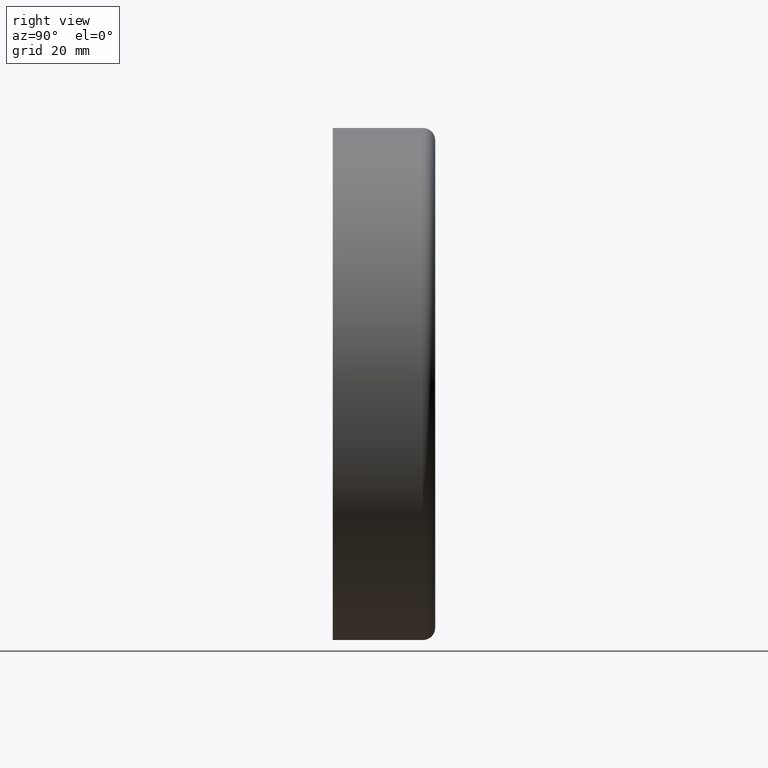
[diagram: clean part render]
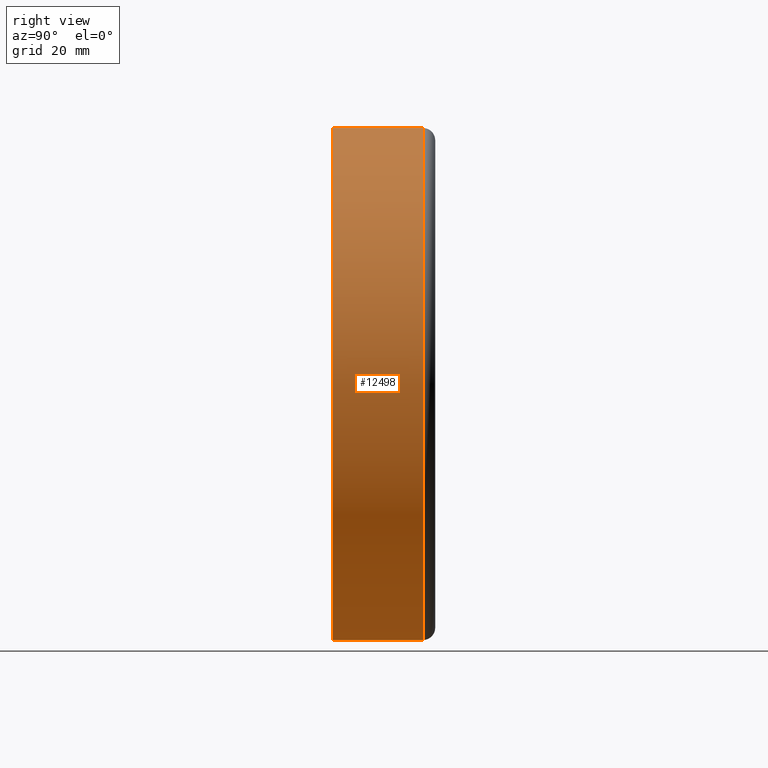
[diagram: same view with one face highlighted and labeled with its STEP entity id]
A machine part, right view. The second image highlights one B-rep face of the part: STEP entity #12498.
In plain terms, the highlighted cylindrical surface (partial cylindrical patch) has radius 62.5 mm, axis along (-0, -1, -0).
Its self-contained STEP definition (entity closure, byte-faithful):
#1 = CIRCLE ( 'NONE', #7782, 62.50000000000000000 ) ;
#303 = CYLINDRICAL_SURFACE ( 'NONE', #8350, 62.50000000000000000 ) ;
#1188 = VECTOR ( 'NONE', #11476, 1000.000000000000000 ) ;
#1362 = CARTESIAN_POINT ( 'NONE',  ( 0.000000000000000000, 22.00000000000000355, -62.50000000000000000 ) ) ;
#2030 = DIRECTION ( 'NONE',  ( -0.000000000000000000, -1.000000000000000000, -0.000000000000000000 ) ) ;
#2252 = CARTESIAN_POINT ( 'NONE',  ( 7.654042494670957804E-15, 0.000000000000000000, 62.50000000000000000 ) ) ;
#2638 = CARTESIAN_POINT ( 'NONE',  ( 0.000000000000000000, 0.000000000000000000, 0.000000000000000000 ) ) ;
#2713 = VERTEX_POINT ( 'NONE', #8235 ) ;
#4097 = EDGE_CURVE ( 'NONE', #10280, #2713, #15532, .T. ) ;
#4296 = DIRECTION ( 'NONE',  ( 0.000000000000000000, 0.000000000000000000, -1.000000000000000000 ) ) ;
#4437 = EDGE_LOOP ( 'NONE', ( #9067, #11041, #14861, #5311 ) ) ;
#4969 = DIRECTION ( 'NONE',  ( 0.000000000000000000, 0.000000000000000000, -1.000000000000000000 ) ) ;
#5276 = EDGE_CURVE ( 'NONE', #2713, #10482, #1, .T. ) ;
#5311 = ORIENTED_EDGE ( 'NONE', *, *, #4097, .F. ) ;
#6398 = EDGE_CURVE ( 'NONE', #10280, #9470, #10481, .T. ) ;
#7130 = DIRECTION ( 'NONE',  ( -0.000000000000000000, -1.000000000000000000, -0.000000000000000000 ) ) ;
#7428 = DIRECTION ( 'NONE',  ( 0.000000000000000000, 0.000000000000000000, -1.000000000000000000 ) ) ;
#7646 = EDGE_CURVE ( 'NONE', #9470, #10482, #13142, .T. ) ;
#7782 = AXIS2_PLACEMENT_3D ( 'NONE', #11758, #2030, #4296 ) ;
#8235 = CARTESIAN_POINT ( 'NONE',  ( 0.000000000000000000, 0.000000000000000000, -62.50000000000000000 ) ) ;
#8350 = AXIS2_PLACEMENT_3D ( 'NONE', #2638, #11289, #7428 ) ;
#8414 = AXIS2_PLACEMENT_3D ( 'NONE', #14923, #13493, #4969 ) ;
#9067 = ORIENTED_EDGE ( 'NONE', *, *, #6398, .T. ) ;
#9213 = FACE_OUTER_BOUND ( 'NONE', #4437, .T. ) ;
#9470 = VERTEX_POINT ( 'NONE', #15351 ) ;
#10280 = VERTEX_POINT ( 'NONE', #1362 ) ;
#10481 = CIRCLE ( 'NONE', #8414, 62.50000000000000000 ) ;
#10482 = VERTEX_POINT ( 'NONE', #11518 ) ;
#11041 = ORIENTED_EDGE ( 'NONE', *, *, #7646, .T. ) ;
#11289 = DIRECTION ( 'NONE',  ( -0.000000000000000000, -1.000000000000000000, -0.000000000000000000 ) ) ;
#11360 = CARTESIAN_POINT ( 'NONE',  ( 0.000000000000000000, 0.000000000000000000, -62.50000000000000000 ) ) ;
#11476 = DIRECTION ( 'NONE',  ( -0.000000000000000000, -1.000000000000000000, -0.000000000000000000 ) ) ;
#11518 = CARTESIAN_POINT ( 'NONE',  ( 7.654042494670957804E-15, 0.000000000000000000, 62.50000000000000000 ) ) ;
#11758 = CARTESIAN_POINT ( 'NONE',  ( 0.000000000000000000, 0.000000000000000000, 0.000000000000000000 ) ) ;
#12498 = ADVANCED_FACE ( 'NONE', ( #9213 ), #303, .T. ) ;
#13142 = LINE ( 'NONE', #2252, #14885 ) ;
#13493 = DIRECTION ( 'NONE',  ( -0.000000000000000000, -1.000000000000000000, -0.000000000000000000 ) ) ;
#14861 = ORIENTED_EDGE ( 'NONE', *, *, #5276, .F. ) ;
#14885 = VECTOR ( 'NONE', #7130, 1000.000000000000000 ) ;
#14923 = CARTESIAN_POINT ( 'NONE',  ( 0.000000000000000000, 22.00000000000000355, 0.000000000000000000 ) ) ;
#15351 = CARTESIAN_POINT ( 'NONE',  ( 7.654042494670957804E-15, 22.00000000000000355, 62.50000000000000000 ) ) ;
#15532 = LINE ( 'NONE', #11360, #1188 ) ;